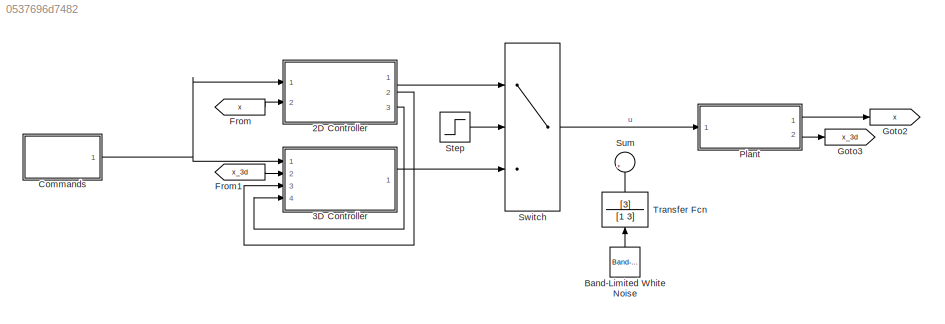
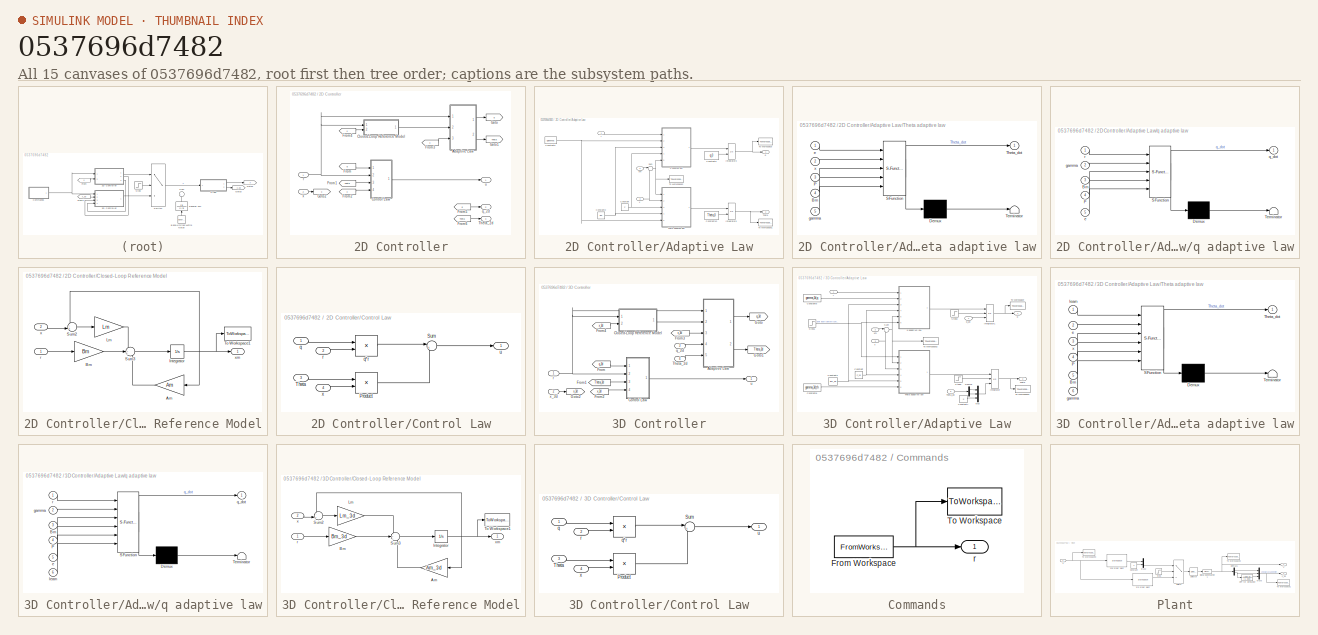
[diagram: thumbnail index - all 15 canvases of the model, root first then tree order]
MODEL slx_0537696d7482
KIND model
CONFIG AbsTol = auto
CONFIG EnableMultiTasking = off
CONFIG FixedStep = dT
CONFIG MaxStep = auto
CONFIG MinStep = auto
CONFIG RelTol = 1e-6
CONFIG SampleTimeConstraint = Unconstrained
CONFIG Solver = FixedStepAuto
CONFIG SolverName = FixedStepAuto
CONFIG StartTime = 0.0
CONFIG StopTime = tfin
BLOCK [SubSystem] 2D Controller
  Ports = [2, 3]
  RequestExecContextInheritance = off
  Variant = off
BLOCK [SubSystem] 2D Controller/Adaptive Law
  Ports = [3, 2]
  RequestExecContextInheritance = off
  Variant = off
BLOCK [Constant] 2D Controller/Adaptive Law/Constant
  Value = P
  VectorParams1D = off
BLOCK [Constant] 2D Controller/Adaptive Law/Constant10
  Value = Theta_0
  VectorParams1D = off
BLOCK [Constant] 2D Controller/Adaptive Law/Constant2
  Value = Bm
  VectorParams1D = off
BLOCK [Constant] 2D Controller/Adaptive Law/Constant5
  Value = gamma
  VectorParams1D = off
BLOCK [Constant] 2D Controller/Adaptive Law/Constant9
  Value = q_0
  VectorParams1D = off
BLOCK [Integrator] 2D Controller/Adaptive Law/Integrator3
  InitialCondition = q0
  InitialConditionSource = external
  Ports = [2, 1]
BLOCK [Integrator] 2D Controller/Adaptive Law/Integrator5
  InitialConditionSource = external
  Ports = [2, 1]
BLOCK [Sum] 2D Controller/Adaptive Law/Sum
  IconShape = round
  InputSameDT = off
  Inputs = |-+
  OutDataTypeStr = Inherit: Inherit via internal rule
  Ports = [2, 1]
  SaturateOnIntegerOverflow = off
BLOCK [Outport] 2D Controller/Adaptive Law/Theta
  IconDisplay = Port number
  Port = 2
BLOCK [SubSystem] 2D Controller/Adaptive Law/Theta adaptive law
  ErrorFcn = Stateflow.Translate.translate
  PermitHierarchicalResolution = ExplicitOnly
  Ports = [5, 1]
  RequestExecContextInheritance = off
  SFBlockType = MATLAB Function
  TreatAsAtomicUnit = on
  Variant = off
BLOCK [Demux] 2D Controller/Adaptive Law/Theta adaptive law/ Demux 
  Outputs = 1
  Ports = [1, 1]
BLOCK [S-Function] 2D Controller/Adaptive Law/Theta adaptive law/ SFunction 
  EnableBusSupport = on
  FunctionName = sf_sfun
  PortCounts = [5 2]
  Ports = [5, 2]
  SFcnIsStateOwnerBlock = off
  SFunctionDeploymentMode = off
  Tag = Stateflow S-Function AnomalyResponseActuators 2
BLOCK [Terminator] 2D Controller/Adaptive Law/Theta adaptive law/ Terminator 
BLOCK [Inport] 2D Controller/Adaptive Law/Theta adaptive law/Bm
  IconDisplay = Port number
  Port = 4
BLOCK [Inport] 2D Controller/Adaptive Law/Theta adaptive law/P
  IconDisplay = Port number
  Port = 3
BLOCK [Outport] 2D Controller/Adaptive Law/Theta adaptive law/Theta_dot
  IconDisplay = Port number
BLOCK [Inport] 2D Controller/Adaptive Law/Theta adaptive law/e
  IconDisplay = Port number
BLOCK [Inport] 2D Controller/Adaptive Law/Theta adaptive law/gamma
  IconDisplay = Port number
  Port = 5
BLOCK [Inport] 2D Controller/Adaptive Law/Theta adaptive law/x
  IconDisplay = Port number
  Port = 2
BLOCK [ToWorkspace] 2D Controller/Adaptive Law/To Workspace
  FixptAsFi = on
  MaxDataPoints = inf
  Ports = [1]
  SampleTime = -1
  Save2DSignal = 2-D array (concatenate along first dimension)
  VariableName = q
BLOCK [ToWorkspace] 2D Controller/Adaptive Law/To Workspace1
  FixptAsFi = on
  MaxDataPoints = inf
  Ports = [1]
  SampleTime = -1
  Save2DSignal = 2-D array (concatenate along first dimension)
  VariableName = Theta
BLOCK [ToWorkspace] 2D Controller/Adaptive Law/To Workspace2
  FixptAsFi = on
  MaxDataPoints = inf
  Ports = [1]
  SampleTime = -1
  Save2DSignal = 3-D array (concatenate along third dimension)
  VariableName = e
BLOCK [Outport] 2D Controller/Adaptive Law/q
  IconDisplay = Port number
BLOCK [SubSystem] 2D Controller/Adaptive Law/q adaptive law
  ErrorFcn = Stateflow.Translate.translate
  PermitHierarchicalResolution = ExplicitOnly
  Ports = [5, 1]
  RequestExecContextInheritance = off
  SFBlockType = MATLAB Function
  TreatAsAtomicUnit = on
  Variant = off
BLOCK [Demux] 2D Controller/Adaptive Law/q adaptive law/ Demux 
  Outputs = 1
  Ports = [1, 1]
BLOCK [S-Function] 2D Controller/Adaptive Law/q adaptive law/ SFunction 
  EnableBusSupport = on
  FunctionName = sf_sfun
  PortCounts = [5 2]
  Ports = [5, 2]
  SFcnIsStateOwnerBlock = off
  SFunctionDeploymentMode = off
  Tag = Stateflow S-Function AnomalyResponseActuators 1
BLOCK [Terminator] 2D Controller/Adaptive Law/q adaptive law/ Terminator 
BLOCK [Inport] 2D Controller/Adaptive Law/q adaptive law/Bm
  IconDisplay = Port number
  Port = 3
BLOCK [Inport] 2D Controller/Adaptive Law/q adaptive law/P
  IconDisplay = Port number
  Port = 4
BLOCK [Inport] 2D Controller/Adaptive Law/q adaptive law/e
  IconDisplay = Port number
  Port = 5
BLOCK [Inport] 2D Controller/Adaptive Law/q adaptive law/gamma
  IconDisplay = Port number
  Port = 2
BLOCK [Outport] 2D Controller/Adaptive Law/q adaptive law/q_dot
  IconDisplay = Port number
BLOCK [Inport] 2D Controller/Adaptive Law/q adaptive law/r
  IconDisplay = Port number
BLOCK [Inport] 2D Controller/Adaptive Law/r
  IconDisplay = Port number
BLOCK [Inport] 2D Controller/Adaptive Law/x
  IconDisplay = Port number
  Port = 3
  PortDimensions = [2,1]
BLOCK [Inport] 2D Controller/Adaptive Law/xm
  IconDisplay = Port number
  Port = 2
  PortDimensions = [2,1]
BLOCK [SubSystem] 2D Controller/Closed-Loop Reference Model
  Ports = [2, 1]
  RequestExecContextInheritance = off
  Variant = off
BLOCK [Gain] 2D Controller/Closed-Loop Reference Model/Am
  Gain = Am
  Multiplication = Matrix(K*u)
  OutDataTypeStr = Inherit: Inherit via internal rule
  ParamDataTypeStr = Inherit: Inherit via internal rule
  SaturateOnIntegerOverflow = off
BLOCK [Gain] 2D Controller/Closed-Loop Reference Model/Bm
  Gain = Bm
  Multiplication = Matrix(K*u)
  OutDataTypeStr = Inherit: Inherit via internal rule
  ParamDataTypeStr = Inherit: Inherit via internal rule
  SaturateOnIntegerOverflow = off
BLOCK [Integrator] 2D Controller/Closed-Loop Reference Model/Integrator
  Ports = [1, 1]
BLOCK [Gain] 2D Controller/Closed-Loop Reference Model/Lm
  Gain = Lm
  Multiplication = Matrix(K*u)
  OutDataTypeStr = Inherit: Inherit via internal rule
  ParamDataTypeStr = Inherit: Inherit via internal rule
  SaturateOnIntegerOverflow = off
BLOCK [Sum] 2D Controller/Closed-Loop Reference Model/Sum2
  IconShape = round
  InputSameDT = off
  Inputs = -+|
  OutDataTypeStr = Inherit: Inherit via internal rule
  Ports = [2, 1]
  SaturateOnIntegerOverflow = off
BLOCK [Sum] 2D Controller/Closed-Loop Reference Model/Sum3
  IconShape = round
  InputSameDT = off
  Inputs = -++
  OutDataTypeStr = Inherit: Inherit via internal rule
  Ports = [3, 1]
  SaturateOnIntegerOverflow = off
BLOCK [ToWorkspace] 2D Controller/Closed-Loop Reference Model/To Workspace1
  FixptAsFi = on
  MaxDataPoints = inf
  Ports = [1]
  SampleTime = -1
  Save2DSignal = 2-D array (concatenate along first dimension)
  VariableName = xm
BLOCK [Inport] 2D Controller/Closed-Loop Reference Model/r
  IconDisplay = Port number
BLOCK [Inport] 2D Controller/Closed-Loop Reference Model/x
  IconDisplay = Port number
  Port = 2
BLOCK [Outport] 2D Controller/Closed-Loop Reference Model/xm
  IconDisplay = Port number
BLOCK [SubSystem] 2D Controller/Control Law
  Ports = [4, 1]
  RequestExecContextInheritance = off
  Variant = off
BLOCK [Product] 2D Controller/Control Law/Product
  InputSameDT = off
  Multiplication = Matrix(*)
  OutDataTypeStr = Inherit: Inherit via internal rule
  Ports = [2, 1]
  RndMeth = Floor
  SaturateOnIntegerOverflow = off
BLOCK [Sum] 2D Controller/Control Law/Sum
  IconShape = round
  InputSameDT = off
  Inputs = |++
  OutDataTypeStr = Inherit: Inherit via internal rule
  Ports = [2, 1]
  SaturateOnIntegerOverflow = off
BLOCK [Inport] 2D Controller/Control Law/Theta
  IconDisplay = Port number
  Port = 3
BLOCK [Inport] 2D Controller/Control Law/q
  IconDisplay = Port number
BLOCK [Product] 2D Controller/Control Law/q*r
  InputSameDT = off
  OutDataTypeStr = Inherit: Inherit via internal rule
  Ports = [2, 1]
  RndMeth = Floor
  SaturateOnIntegerOverflow = off
BLOCK [Inport] 2D Controller/Control Law/r
  IconDisplay = Port number
  Port = 2
BLOCK [Outport] 2D Controller/Control Law/u
  IconDisplay = Port number
BLOCK [Inport] 2D Controller/Control Law/x
  IconDisplay = Port number
  Port = 4
BLOCK [From] 2D Controller/From
  GotoTag = q
BLOCK [From] 2D Controller/From1
  GotoTag = Theta
BLOCK [From] 2D Controller/From2
  GotoTag = x
BLOCK [From] 2D Controller/From3
  GotoTag = x
BLOCK [From] 2D Controller/From4
  GotoTag = x
BLOCK [From] 2D Controller/From5
  GotoTag = q
BLOCK [From] 2D Controller/From6
  GotoTag = Theta
BLOCK [Goto] 2D Controller/Goto
  GotoTag = q
BLOCK [Goto] 2D Controller/Goto1
  GotoTag = Theta
BLOCK [Goto] 2D Controller/Goto2
  GotoTag = x
BLOCK [Outport] 2D Controller/Theta_2d
  IconDisplay = Port number
  Port = 3
BLOCK [Outport] 2D Controller/q_2d
  IconDisplay = Port number
  Port = 2
BLOCK [Inport] 2D Controller/r
  IconDisplay = Port number
BLOCK [Outport] 2D Controller/u
  IconDisplay = Port number
BLOCK [Inport] 2D Controller/x
  IconDisplay = Port number
  Port = 2
BLOCK [SubSystem] 3D Controller
  Ports = [4, 1]
  RequestExecContextInheritance = off
  Variant = off
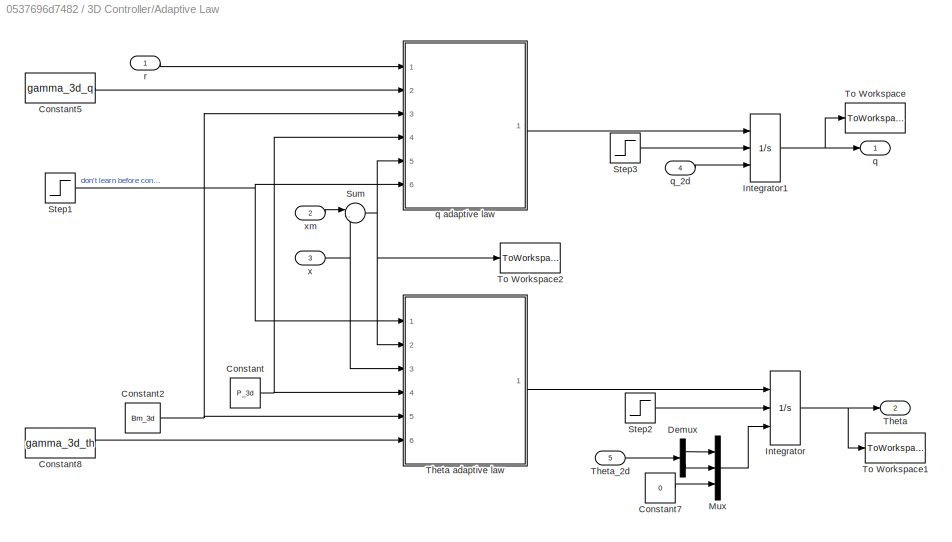
BLOCK [SubSystem] 3D Controller/Adaptive Law
  Ports = [5, 2]
  RequestExecContextInheritance = off
  Variant = off
BLOCK [Constant] 3D Controller/Adaptive Law/Constant
  Value = P_3d
  VectorParams1D = off
BLOCK [Constant] 3D Controller/Adaptive Law/Constant2
  Value = Bm_3d
  VectorParams1D = off
BLOCK [Constant] 3D Controller/Adaptive Law/Constant5
  Value = gamma_3d_q
  VectorParams1D = off
BLOCK [Constant] 3D Controller/Adaptive Law/Constant7
  Value = 0
BLOCK [Constant] 3D Controller/Adaptive Law/Constant8
  Value = gamma_3d_th
  VectorParams1D = off
BLOCK [Demux] 3D Controller/Adaptive Law/Demux
  DisplayOption = bar
  Outputs = 2
  Ports = [1, 2]
BLOCK [Integrator] 3D Controller/Adaptive Law/Integrator
  ExternalReset = falling
  InitialConditionSource = external
  Ports = [3, 1]
BLOCK [Integrator] 3D Controller/Adaptive Law/Integrator1
  ExternalReset = falling
  InitialCondition = q0
  InitialConditionSource = external
  Ports = [3, 1]
BLOCK [Mux] 3D Controller/Adaptive Law/Mux
  DisplayOption = bar
  Inputs = 3
  Ports = [3, 1]
BLOCK [Step] 3D Controller/Adaptive Law/Step1
  SampleTime = 0
  Time = ts_rm
BLOCK [Step] 3D Controller/Adaptive Law/Step2
  After = -0.5
  Before = 0.5
  SampleTime = 0
  Time = ts_rm
BLOCK [Step] 3D Controller/Adaptive Law/Step3
  After = -0.5
  Before = 0.5
  SampleTime = 0
  Time = ts_rm
BLOCK [Sum] 3D Controller/Adaptive Law/Sum
  IconShape = round
  InputSameDT = off
  Inputs = |-+
  OutDataTypeStr = Inherit: Inherit via internal rule
  Ports = [2, 1]
  SaturateOnIntegerOverflow = off
BLOCK [Outport] 3D Controller/Adaptive Law/Theta
  IconDisplay = Port number
  Port = 2
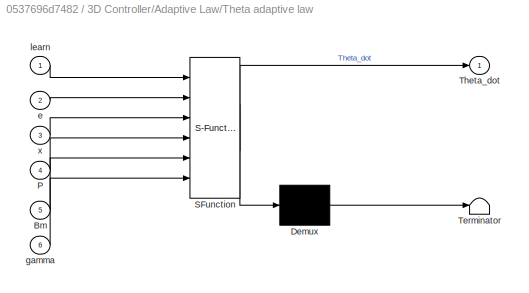
BLOCK [SubSystem] 3D Controller/Adaptive Law/Theta adaptive law
  ErrorFcn = Stateflow.Translate.translate
  PermitHierarchicalResolution = ExplicitOnly
  Ports = [6, 1]
  RequestExecContextInheritance = off
  SFBlockType = MATLAB Function
  TreatAsAtomicUnit = on
  Variant = off
BLOCK [Demux] 3D Controller/Adaptive Law/Theta adaptive law/ Demux 
  Outputs = 1
  Ports = [1, 1]
BLOCK [S-Function] 3D Controller/Adaptive Law/Theta adaptive law/ SFunction 
  EnableBusSupport = on
  FunctionName = sf_sfun
  PortCounts = [6 2]
  Ports = [6, 2]
  SFcnIsStateOwnerBlock = off
  SFunctionDeploymentMode = off
  Tag = Stateflow S-Function AnomalyResponseActuators 3
BLOCK [Terminator] 3D Controller/Adaptive Law/Theta adaptive law/ Terminator 
BLOCK [Inport] 3D Controller/Adaptive Law/Theta adaptive law/Bm
  IconDisplay = Port number
  Port = 5
BLOCK [Inport] 3D Controller/Adaptive Law/Theta adaptive law/P
  IconDisplay = Port number
  Port = 4
BLOCK [Outport] 3D Controller/Adaptive Law/Theta adaptive law/Theta_dot
  IconDisplay = Port number
BLOCK [Inport] 3D Controller/Adaptive Law/Theta adaptive law/e
  IconDisplay = Port number
  Port = 2
BLOCK [Inport] 3D Controller/Adaptive Law/Theta adaptive law/gamma
  IconDisplay = Port number
  Port = 6
BLOCK [Inport] 3D Controller/Adaptive Law/Theta adaptive law/learn
  IconDisplay = Port number
BLOCK [Inport] 3D Controller/Adaptive Law/Theta adaptive law/x
  IconDisplay = Port number
  Port = 3
BLOCK [Inport] 3D Controller/Adaptive Law/Theta_2d
  IconDisplay = Port number
  Port = 5
BLOCK [ToWorkspace] 3D Controller/Adaptive Law/To Workspace
  FixptAsFi = on
  MaxDataPoints = inf
  Ports = [1]
  SampleTime = -1
  Save2DSignal = 2-D array (concatenate along first dimension)
  VariableName = q_3d
BLOCK [ToWorkspace] 3D Controller/Adaptive Law/To Workspace1
  FixptAsFi = on
  MaxDataPoints = inf
  Ports = [1]
  SampleTime = -1
  Save2DSignal = 2-D array (concatenate along first dimension)
  VariableName = Theta_3d
BLOCK [ToWorkspace] 3D Controller/Adaptive Law/To Workspace2
  FixptAsFi = on
  MaxDataPoints = inf
  Ports = [1]
  SampleTime = -1
  Save2DSignal = 3-D array (concatenate along third dimension)
  VariableName = e_3d
BLOCK [Outport] 3D Controller/Adaptive Law/q
  IconDisplay = Port number
BLOCK [SubSystem] 3D Controller/Adaptive Law/q adaptive law
  ErrorFcn = Stateflow.Translate.translate
  PermitHierarchicalResolution = ExplicitOnly
  Ports = [6, 1]
  RequestExecContextInheritance = off
  SFBlockType = MATLAB Function
  TreatAsAtomicUnit = on
  Variant = off
BLOCK [Demux] 3D Controller/Adaptive Law/q adaptive law/ Demux 
  Outputs = 1
  Ports = [1, 1]
BLOCK [S-Function] 3D Controller/Adaptive Law/q adaptive law/ SFunction 
  EnableBusSupport = on
  FunctionName = sf_sfun
  PortCounts = [6 2]
  Ports = [6, 2]
  SFcnIsStateOwnerBlock = off
  SFunctionDeploymentMode = off
  Tag = Stateflow S-Function AnomalyResponseActuators 4
BLOCK [Terminator] 3D Controller/Adaptive Law/q adaptive law/ Terminator 
BLOCK [Inport] 3D Controller/Adaptive Law/q adaptive law/Bm
  IconDisplay = Port number
  Port = 3
BLOCK [Inport] 3D Controller/Adaptive Law/q adaptive law/P
  IconDisplay = Port number
  Port = 4
BLOCK [Inport] 3D Controller/Adaptive Law/q adaptive law/e
  IconDisplay = Port number
  Port = 5
BLOCK [Inport] 3D Controller/Adaptive Law/q adaptive law/gamma
  IconDisplay = Port number
  Port = 2
BLOCK [Inport] 3D Controller/Adaptive Law/q adaptive law/learn
  IconDisplay = Port number
  Port = 6
BLOCK [Outport] 3D Controller/Adaptive Law/q adaptive law/q_dot
  IconDisplay = Port number
BLOCK [Inport] 3D Controller/Adaptive Law/q adaptive law/r
  IconDisplay = Port number
BLOCK [Inport] 3D Controller/Adaptive Law/q_2d
  IconDisplay = Port number
  Port = 4
BLOCK [Inport] 3D Controller/Adaptive Law/r
  IconDisplay = Port number
BLOCK [Inport] 3D Controller/Adaptive Law/x
  IconDisplay = Port number
  Port = 3
  PortDimensions = [3,1]
BLOCK [Inport] 3D Controller/Adaptive Law/xm
  IconDisplay = Port number
  Port = 2
  PortDimensions = [3,1]
BLOCK [SubSystem] 3D Controller/Closed-Loop Reference Model
  Ports = [2, 1]
  RequestExecContextInheritance = off
  Variant = off
BLOCK [Gain] 3D Controller/Closed-Loop Reference Model/Am
  Gain = Am_3d
  Multiplication = Matrix(K*u)
  OutDataTypeStr = Inherit: Inherit via internal rule
  ParamDataTypeStr = Inherit: Inherit via internal rule
  SaturateOnIntegerOverflow = off
BLOCK [Gain] 3D Controller/Closed-Loop Reference Model/Bm
  Gain = Bm_3d
  Multiplication = Matrix(K*u)
  OutDataTypeStr = Inherit: Inherit via internal rule
  ParamDataTypeStr = Inherit: Inherit via internal rule
  SaturateOnIntegerOverflow = off
BLOCK [Integrator] 3D Controller/Closed-Loop Reference Model/Integrator
  Ports = [1, 1]
BLOCK [Gain] 3D Controller/Closed-Loop Reference Model/Lm
  Gain = Lm_3d
  Multiplication = Matrix(K*u)
  OutDataTypeStr = Inherit: Inherit via internal rule
  ParamDataTypeStr = Inherit: Inherit via internal rule
  SaturateOnIntegerOverflow = off
BLOCK [Sum] 3D Controller/Closed-Loop Reference Model/Sum2
  IconShape = round
  InputSameDT = off
  Inputs = -+|
  OutDataTypeStr = Inherit: Inherit via internal rule
  Ports = [2, 1]
  SaturateOnIntegerOverflow = off
BLOCK [Sum] 3D Controller/Closed-Loop Reference Model/Sum3
  IconShape = round
  InputSameDT = off
  Inputs = -++
  OutDataTypeStr = Inherit: Inherit via internal rule
  Ports = [3, 1]
  SaturateOnIntegerOverflow = off
BLOCK [ToWorkspace] 3D Controller/Closed-Loop Reference Model/To Workspace1
  FixptAsFi = on
  MaxDataPoints = inf
  Ports = [1]
  SampleTime = -1
  Save2DSignal = 2-D array (concatenate along first dimension)
  VariableName = xm_3d
BLOCK [Inport] 3D Controller/Closed-Loop Reference Model/r
  IconDisplay = Port number
BLOCK [Inport] 3D Controller/Closed-Loop Reference Model/x
  IconDisplay = Port number
  Port = 2
BLOCK [Outport] 3D Controller/Closed-Loop Reference Model/xm
  IconDisplay = Port number
BLOCK [SubSystem] 3D Controller/Control Law
  Ports = [4, 1]
  RequestExecContextInheritance = off
  Variant = off
BLOCK [Product] 3D Controller/Control Law/Product
  InputSameDT = off
  Multiplication = Matrix(*)
  OutDataTypeStr = Inherit: Inherit via internal rule
  Ports = [2, 1]
  RndMeth = Floor
  SaturateOnIntegerOverflow = off
BLOCK [Sum] 3D Controller/Control Law/Sum
  IconShape = round
  InputSameDT = off
  Inputs = |++
  OutDataTypeStr = Inherit: Inherit via internal rule
  Ports = [2, 1]
  SaturateOnIntegerOverflow = off
BLOCK [Inport] 3D Controller/Control Law/Theta
  IconDisplay = Port number
  Port = 3
BLOCK [Inport] 3D Controller/Control Law/q
  IconDisplay = Port number
BLOCK [Product] 3D Controller/Control Law/q*r
  InputSameDT = off
  OutDataTypeStr = Inherit: Inherit via internal rule
  Ports = [2, 1]
  RndMeth = Floor
  SaturateOnIntegerOverflow = off
BLOCK [Inport] 3D Controller/Control Law/r
  IconDisplay = Port number
  Port = 2
BLOCK [Outport] 3D Controller/Control Law/u
  IconDisplay = Port number
BLOCK [Inport] 3D Controller/Control Law/x
  IconDisplay = Port number
  Port = 4
BLOCK [From] 3D Controller/From
  GotoTag = q_3d
BLOCK [From] 3D Controller/From1
  GotoTag = Theta_3d
BLOCK [From] 3D Controller/From2
  GotoTag = x_3d
BLOCK [From] 3D Controller/From3
  GotoTag = x_3d
BLOCK [From] 3D Controller/From4
  GotoTag = x_3d
BLOCK [Goto] 3D Controller/Goto
  GotoTag = q_3d
BLOCK [Goto] 3D Controller/Goto1
  GotoTag = Theta_3d
BLOCK [Goto] 3D Controller/Goto2
  GotoTag = x_3d
BLOCK [Inport] 3D Controller/Theta_2d
  IconDisplay = Port number
  Port = 4
BLOCK [Inport] 3D Controller/q_2d
  IconDisplay = Port number
  Port = 3
BLOCK [Inport] 3D Controller/r
  IconDisplay = Port number
BLOCK [Outport] 3D Controller/u
  IconDisplay = Port number
BLOCK [Inport] 3D Controller/x_3d
  IconDisplay = Port number
  Port = 2
BLOCK [Reference] Band-Limited White Noise  REF=simulink/Sources/Band-Limited
White Noise
  Commented = on
  Ports = [0, 1]
  SourceBlock = simulink/Sources/Band-Limited\nWhite Noise
  SourceProductBaseCode = SL
  SourceProductName = Simulink
  SourceType = Band-Limited White Noise.
BLOCK [SubSystem] Commands
  Ports = [0, 1]
  RequestExecContextInheritance = off
  Variant = off
BLOCK [FromWorkspace] Commands/From Workspace
  Interpolate = off
  OutputAfterFinalValue = Setting to zero
  SampleTime = 0
  VariableName = r_timed
  ZeroCross = on
BLOCK [ToWorkspace] Commands/To Workspace
  FixptAsFi = on
  MaxDataPoints = inf
  Ports = [1]
  SampleTime = -1
  Save2DSignal = 2-D array (concatenate along first dimension)
  VariableName = r
BLOCK [Outport] Commands/r
  IconDisplay = Port number
BLOCK [From] From
  GotoTag = x
BLOCK [From] From1
  GotoTag = x_3d
BLOCK [Goto] Goto2
  GotoTag = x
BLOCK [Goto] Goto3
  GotoTag = x_3d
BLOCK [SubSystem] Plant
  Ports = [1, 2]
  RequestExecContextInheritance = off
  Variant = off
BLOCK [StateSpace] Plant/2nd order plant
  A = Ap
  B = Bp
  C = eye(2)
  D = [0; 0]
  InitialCondition = 0
  Ports = [1, 1]
BLOCK [StateSpace] Plant/3rd order plant
  A = Ap_3
  B = Bp_3
  C = eye(3)
  D = [0; 0; 0]
  InitialCondition = 0
  Ports = [1, 1]
BLOCK [Constant] Plant/Constant
  Value = 0
BLOCK [Demux] Plant/Demux1
  DisplayOption = bar
  Outputs = [1 1]
  Ports = [1, 2]
BLOCK [TransferFcn] Plant/HPF for derivative
  Denominator = [1 200]
  Numerator = [200 0]
BLOCK [Mux] Plant/Mux2
  DisplayOption = bar
  Inputs = [2 1]
  Ports = [2, 1]
BLOCK [Mux] Plant/Mux3
  DisplayOption = bar
  Inputs = [1 1 1]
  Ports = [3, 1]
BLOCK [Selector] Plant/Selector
  IndexOptions = Index vector (dialog)
  Indices = [1 2]
  InputPortWidth = 3
  OutputSizes = 1
  Ports = [1, 1]
BLOCK [SignalSpecification] Plant/Signal Specification1
  Dimensions = [2 1]
BLOCK [Step] Plant/Step
  After = 0
  Before = 1
  SampleTime = 0
  Time = ts
BLOCK [Switch] Plant/Switch
  Criteria = u2 > Threshold
  InputSameDT = off
  SaturateOnIntegerOverflow = off
  Threshold = 0.5
BLOCK [ToWorkspace] Plant/To Workspace1
  FixptAsFi = on
  MaxDataPoints = inf
  Ports = [1]
  SampleTime = -1
  Save2DSignal = 2-D array (concatenate along first dimension)
  VariableName = x_3d
BLOCK [ToWorkspace] Plant/To Workspace2
  FixptAsFi = on
  MaxDataPoints = inf
  Ports = [1]
  SampleTime = -1
  Save2DSignal = 3-D array (concatenate along third dimension)
  VariableName = x
BLOCK [ToWorkspace] Plant/To Workspace3
  FixptAsFi = on
  MaxDataPoints = inf
  Ports = [1]
  SampleTime = -1
  Save2DSignal = 2-D array (concatenate along first dimension)
  VariableName = u
BLOCK [Inport] Plant/u
  IconDisplay = Port number
BLOCK [Outport] Plant/x
  IconDisplay = Port number
BLOCK [Outport] Plant/x_3d
  IconDisplay = Port number
  Port = 2
BLOCK [Step] Step
  After = 0
  Before = 1
  SampleTime = 0
  Time = ts_rm
BLOCK [Sum] Sum
  Commented = on
  IconShape = round
  InputSameDT = off
  Inputs = |++
  OutDataTypeStr = Inherit: Inherit via internal rule
  Ports = [2, 1]
  SaturateOnIntegerOverflow = off
BLOCK [Switch] Switch
  Criteria = u2 > Threshold
  InputSameDT = off
  SaturateOnIntegerOverflow = off
  Threshold = 0.5
BLOCK [TransferFcn] Transfer Fcn
  Commented = on
  Denominator = [1 3]
  Numerator = [3]
LINE 2D Controller/Adaptive Law/Constant10:1 -> 2D Controller/Adaptive Law/Integrator5:2
NET 2D Controller/Adaptive Law/Constant2:1 -> 2D Controller/Adaptive Law/Theta adaptive law:4, 2D Controller/Adaptive Law/q adaptive law:3
NET 2D Controller/Adaptive Law/Constant5:1 -> 2D Controller/Adaptive Law/Theta adaptive law:5, 2D Controller/Adaptive Law/q adaptive law:2
LINE 2D Controller/Adaptive Law/Constant9:1 -> 2D Controller/Adaptive Law/Integrator3:2
NET 2D Controller/Adaptive Law/Constant:1 -> 2D Controller/Adaptive Law/Theta adaptive law:3, 2D Controller/Adaptive Law/q adaptive law:4
NET 2D Controller/Adaptive Law/Integrator3:1 -> 2D Controller/Adaptive Law/To Workspace:1, 2D Controller/Adaptive Law/q:1
NET 2D Controller/Adaptive Law/Integrator5:1 -> 2D Controller/Adaptive Law/Theta:1, 2D Controller/Adaptive Law/To Workspace1:1
NET 2D Controller/Adaptive Law/Sum:1 -> 2D Controller/Adaptive Law/Theta adaptive law:1, 2D Controller/Adaptive Law/To Workspace2:1, 2D Controller/Adaptive Law/q adaptive law:5
LINE 2D Controller/Adaptive Law/Theta adaptive law:1 -> 2D Controller/Adaptive Law/Integrator5:1
LINE 2D Controller/Adaptive Law/q adaptive law:1 -> 2D Controller/Adaptive Law/Integrator3:1
LINE 2D Controller/Adaptive Law/r:1 -> 2D Controller/Adaptive Law/q adaptive law:1
NET 2D Controller/Adaptive Law/x:1 -> 2D Controller/Adaptive Law/Sum:2, 2D Controller/Adaptive Law/Theta adaptive law:2
LINE 2D Controller/Adaptive Law/xm:1 -> 2D Controller/Adaptive Law/Sum:1
LINE 2D Controller/Adaptive Law:1 -> 2D Controller/Goto:1
LINE 2D Controller/Adaptive Law:2 -> 2D Controller/Goto1:1
LINE 2D Controller/Closed-Loop Reference Model/Am:1 -> 2D Controller/Closed-Loop Reference Model/Sum3:3
LINE 2D Controller/Closed-Loop Reference Model/Bm:1 -> 2D Controller/Closed-Loop Reference Model/Sum3:2
NET 2D Controller/Closed-Loop Reference Model/Integrator:1 -> 2D Controller/Closed-Loop Reference Model/Am:1, 2D Controller/Closed-Loop Reference Model/Sum2:1, 2D Controller/Closed-Loop Reference Model/To Workspace1:1, 2D Controller/Closed-Loop Reference Model/xm:1
LINE 2D Controller/Closed-Loop Reference Model/Lm:1 -> 2D Controller/Closed-Loop Reference Model/Sum3:1
LINE 2D Controller/Closed-Loop Reference Model/Sum2:1 -> 2D Controller/Closed-Loop Reference Model/Lm:1
LINE 2D Controller/Closed-Loop Reference Model/Sum3:1 -> 2D Controller/Closed-Loop Reference Model/Integrator:1
LINE 2D Controller/Closed-Loop Reference Model/r:1 -> 2D Controller/Closed-Loop Reference Model/Bm:1
LINE 2D Controller/Closed-Loop Reference Model/x:1 -> 2D Controller/Closed-Loop Reference Model/Sum2:2
LINE 2D Controller/Closed-Loop Reference Model:1 -> 2D Controller/Adaptive Law:2
LINE 2D Controller/Control Law/Product:1 -> 2D Controller/Control Law/Sum:2
LINE 2D Controller/Control Law/Sum:1 -> 2D Controller/Control Law/u:1
LINE 2D Controller/Control Law/Theta:1 -> 2D Controller/Control Law/Product:1
LINE 2D Controller/Control Law/q*r:1 -> 2D Controller/Control Law/Sum:1
LINE 2D Controller/Control Law/q:1 -> 2D Controller/Control Law/q*r:1
LINE 2D Controller/Control Law/r:1 -> 2D Controller/Control Law/q*r:2
LINE 2D Controller/Control Law/x:1 -> 2D Controller/Control Law/Product:2
LINE 2D Controller/Control Law:1 -> 2D Controller/u:1
LINE 2D Controller/From1:1 -> 2D Controller/Control Law:3
LINE 2D Controller/From2:1 -> 2D Controller/Control Law:4
LINE 2D Controller/From3:1 -> 2D Controller/Adaptive Law:3
LINE 2D Controller/From4:1 -> 2D Controller/Closed-Loop Reference Model:2
LINE 2D Controller/From5:1 -> 2D Controller/q_2d:1
LINE 2D Controller/From6:1 -> 2D Controller/Theta_2d:1
LINE 2D Controller/From:1 -> 2D Controller/Control Law:1
NET 2D Controller/r:1 -> 2D Controller/Adaptive Law:1, 2D Controller/Closed-Loop Reference Model:1, 2D Controller/Control Law:2
LINE 2D Controller/x:1 -> 2D Controller/Goto2:1
LINE 2D Controller:1 -> Switch:1
LINE 2D Controller:2 -> 3D Controller:3
LINE 2D Controller:3 -> 3D Controller:4
NET 3D Controller/Adaptive Law/Constant2:1 -> 3D Controller/Adaptive Law/Theta adaptive law:5, 3D Controller/Adaptive Law/q adaptive law:3
LINE 3D Controller/Adaptive Law/Constant5:1 -> 3D Controller/Adaptive Law/q adaptive law:2
LINE 3D Controller/Adaptive Law/Constant7:1 -> 3D Controller/Adaptive Law/Mux:3
LINE 3D Controller/Adaptive Law/Constant8:1 -> 3D Controller/Adaptive Law/Theta adaptive law:6
NET 3D Controller/Adaptive Law/Constant:1 -> 3D Controller/Adaptive Law/Theta adaptive law:4, 3D Controller/Adaptive Law/q adaptive law:4
LINE 3D Controller/Adaptive Law/Demux:1 -> 3D Controller/Adaptive Law/Mux:1
LINE 3D Controller/Adaptive Law/Demux:2 -> 3D Controller/Adaptive Law/Mux:2
NET 3D Controller/Adaptive Law/Integrator1:1 -> 3D Controller/Adaptive Law/To Workspace:1, 3D Controller/Adaptive Law/q:1
NET 3D Controller/Adaptive Law/Integrator:1 -> 3D Controller/Adaptive Law/Theta:1, 3D Controller/Adaptive Law/To Workspace1:1
LINE 3D Controller/Adaptive Law/Mux:1 -> 3D Controller/Adaptive Law/Integrator:3
NET 3D Controller/Adaptive Law/Step1:1 -> 3D Controller/Adaptive Law/Theta adaptive law:1, 3D Controller/Adaptive Law/q adaptive law:6
LINE 3D Controller/Adaptive Law/Step2:1 -> 3D Controller/Adaptive Law/Integrator:2
LINE 3D Controller/Adaptive Law/Step3:1 -> 3D Controller/Adaptive Law/Integrator1:2
NET 3D Controller/Adaptive Law/Sum:1 -> 3D Controller/Adaptive Law/Theta adaptive law:2, 3D Controller/Adaptive Law/To Workspace2:1, 3D Controller/Adaptive Law/q adaptive law:5
LINE 3D Controller/Adaptive Law/Theta adaptive law:1 -> 3D Controller/Adaptive Law/Integrator:1
LINE 3D Controller/Adaptive Law/Theta_2d:1 -> 3D Controller/Adaptive Law/Demux:1
LINE 3D Controller/Adaptive Law/q adaptive law:1 -> 3D Controller/Adaptive Law/Integrator1:1
LINE 3D Controller/Adaptive Law/q_2d:1 -> 3D Controller/Adaptive Law/Integrator1:3
LINE 3D Controller/Adaptive Law/r:1 -> 3D Controller/Adaptive Law/q adaptive law:1
NET 3D Controller/Adaptive Law/x:1 -> 3D Controller/Adaptive Law/Sum:2, 3D Controller/Adaptive Law/Theta adaptive law:3
LINE 3D Controller/Adaptive Law/xm:1 -> 3D Controller/Adaptive Law/Sum:1
LINE 3D Controller/Adaptive Law:1 -> 3D Controller/Goto:1
LINE 3D Controller/Adaptive Law:2 -> 3D Controller/Goto1:1
LINE 3D Controller/Closed-Loop Reference Model/Am:1 -> 3D Controller/Closed-Loop Reference Model/Sum3:3
LINE 3D Controller/Closed-Loop Reference Model/Bm:1 -> 3D Controller/Closed-Loop Reference Model/Sum3:2
NET 3D Controller/Closed-Loop Reference Model/Integrator:1 -> 3D Controller/Closed-Loop Reference Model/Am:1, 3D Controller/Closed-Loop Reference Model/Sum2:1, 3D Controller/Closed-Loop Reference Model/To Workspace1:1, 3D Controller/Closed-Loop Reference Model/xm:1
LINE 3D Controller/Closed-Loop Reference Model/Lm:1 -> 3D Controller/Closed-Loop Reference Model/Sum3:1
LINE 3D Controller/Closed-Loop Reference Model/Sum2:1 -> 3D Controller/Closed-Loop Reference Model/Lm:1
LINE 3D Controller/Closed-Loop Reference Model/Sum3:1 -> 3D Controller/Closed-Loop Reference Model/Integrator:1
LINE 3D Controller/Closed-Loop Reference Model/r:1 -> 3D Controller/Closed-Loop Reference Model/Bm:1
LINE 3D Controller/Closed-Loop Reference Model/x:1 -> 3D Controller/Closed-Loop Reference Model/Sum2:2
LINE 3D Controller/Closed-Loop Reference Model:1 -> 3D Controller/Adaptive Law:2
LINE 3D Controller/Control Law/Product:1 -> 3D Controller/Control Law/Sum:2
LINE 3D Controller/Control Law/Sum:1 -> 3D Controller/Control Law/u:1
LINE 3D Controller/Control Law/Theta:1 -> 3D Controller/Control Law/Product:1
LINE 3D Controller/Control Law/q*r:1 -> 3D Controller/Control Law/Sum:1
LINE 3D Controller/Control Law/q:1 -> 3D Controller/Control Law/q*r:1
LINE 3D Controller/Control Law/r:1 -> 3D Controller/Control Law/q*r:2
LINE 3D Controller/Control Law/x:1 -> 3D Controller/Control Law/Product:2
LINE 3D Controller/Control Law:1 -> 3D Controller/u:1
LINE 3D Controller/From1:1 -> 3D Controller/Control Law:3
LINE 3D Controller/From2:1 -> 3D Controller/Control Law:4
LINE 3D Controller/From3:1 -> 3D Controller/Adaptive Law:3
LINE 3D Controller/From4:1 -> 3D Controller/Closed-Loop Reference Model:2
LINE 3D Controller/From:1 -> 3D Controller/Control Law:1
LINE 3D Controller/Theta_2d:1 -> 3D Controller/Adaptive Law:5
LINE 3D Controller/q_2d:1 -> 3D Controller/Adaptive Law:4
NET 3D Controller/r:1 -> 3D Controller/Adaptive Law:1, 3D Controller/Closed-Loop Reference Model:1, 3D Controller/Control Law:2
LINE 3D Controller/x_3d:1 -> 3D Controller/Goto2:1
LINE 3D Controller:1 -> Switch:3
LINE Band-Limited White Noise:1 -> Transfer Fcn:1
NET Commands/From Workspace:1 -> Commands/To Workspace:1, Commands/r:1
NET Commands:1 -> 2D Controller:1, 3D Controller:1
LINE From1:1 -> 3D Controller:2
LINE From:1 -> 2D Controller:2
LINE Plant/2nd order plant:1 -> Plant/Mux2:1
LINE Plant/3rd order plant:1 -> Plant/Switch:3
LINE Plant/Constant:1 -> Plant/Mux2:2
LINE Plant/Demux1:1 -> Plant/Mux3:1
NET Plant/Demux1:2 -> Plant/HPF for derivative:1, Plant/Mux3:2
LINE Plant/HPF for derivative:1 -> Plant/Mux3:3
LINE Plant/Mux2:1 -> Plant/Switch:1
NET Plant/Mux3:1 -> Plant/To Workspace1:1, Plant/x_3d:1
LINE Plant/Selector:1 -> Plant/Signal Specification1:1
NET Plant/Signal Specification1:1 -> Plant/Demux1:1, Plant/To Workspace2:1, Plant/x:1
LINE Plant/Step:1 -> Plant/Switch:2
LINE Plant/Switch:1 -> Plant/Selector:1
NET Plant/u:1 -> Plant/2nd order plant:1, Plant/3rd order plant:1, Plant/To Workspace3:1
LINE Plant:1 -> Goto2:1
LINE Plant:2 -> Goto3:1
LINE Step:1 -> Switch:2
LINE Switch:1 -> Plant:1
LINE Transfer Fcn:1 -> Sum:2
note: NET lines group one-source signal fan-out (src -> all destinations, sorted); 1:1 wires keep LINE
CHART 2D Controller/Adaptive Law/q adaptive law states=1 transitions=1
  STATE_LABEL 'eML_blk_kernel()'
  STATE_LABEL "SCRIPT:\nfunction q_dot = fcn(r,gamma,Bm,P,e)\nq_dot = - gamma * Bm' * P * e * r;\n"
CHART 2D Controller/Adaptive Law/Theta adaptive law states=1 transitions=1
  STATE_LABEL 'eML_blk_kernel()'
  STATE_LABEL "SCRIPT:\nfunction Theta_dot = fcn(e,x,P,Bm,gamma)\nTheta_dot = - gamma * Bm' * P * e * x';"
CHART 3D Controller/Adaptive Law/Theta adaptive law states=1 transitions=1
  STATE_LABEL 'eML_blk_kernel()'
  STATE_LABEL "SCRIPT:\nfunction Theta_dot = fcn(learn,e,x,P,Bm,gamma)\n% Theta_dot = - gamma * Bm' * P * e * x';\nif learn == 1\n    Theta_dot = - Bm' * gamma * P * e * x';\nelse\n    Theta_dot = 0 * x';\nend"
CHART 3D Controller/Adaptive Law/q adaptive law states=1 transitions=1
  STATE_LABEL 'eML_blk_kernel()'
  STATE_LABEL "SCRIPT:\nfunction q_dot = fcn(r,gamma,Bm,P,e,learn)\nif learn == 1\n    q_dot = - gamma * Bm' * P * e * r;\nelse\n    q_dot = 0;\nend"
